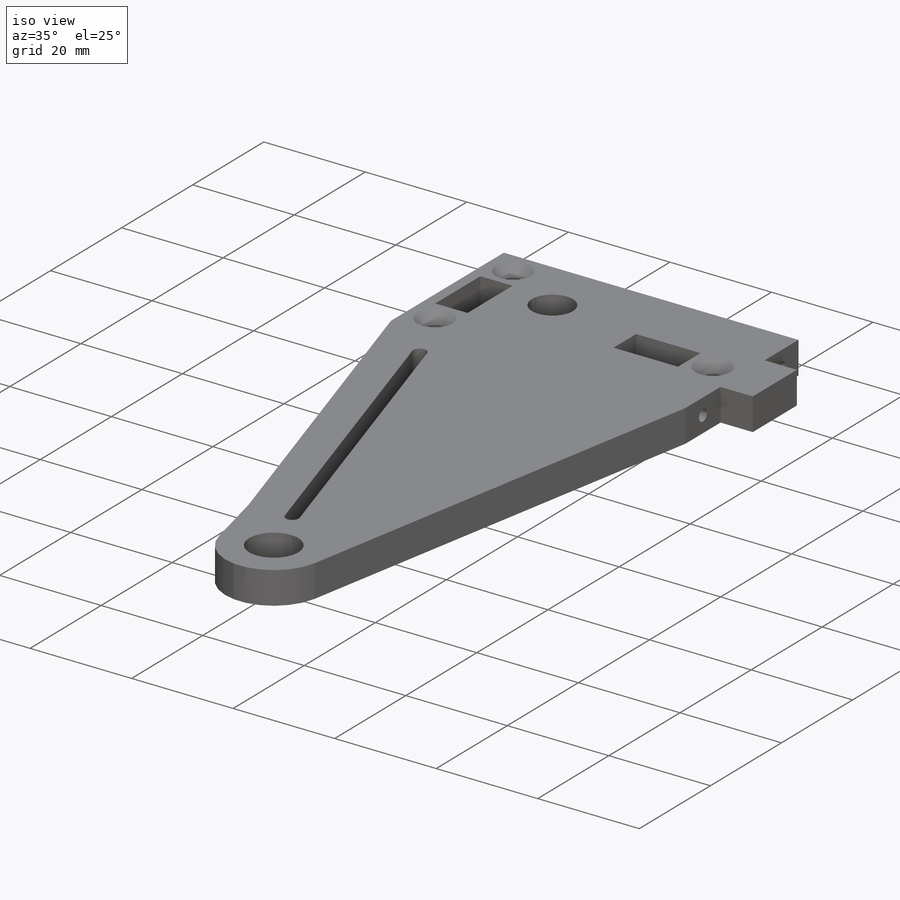
[diagram: iso view]
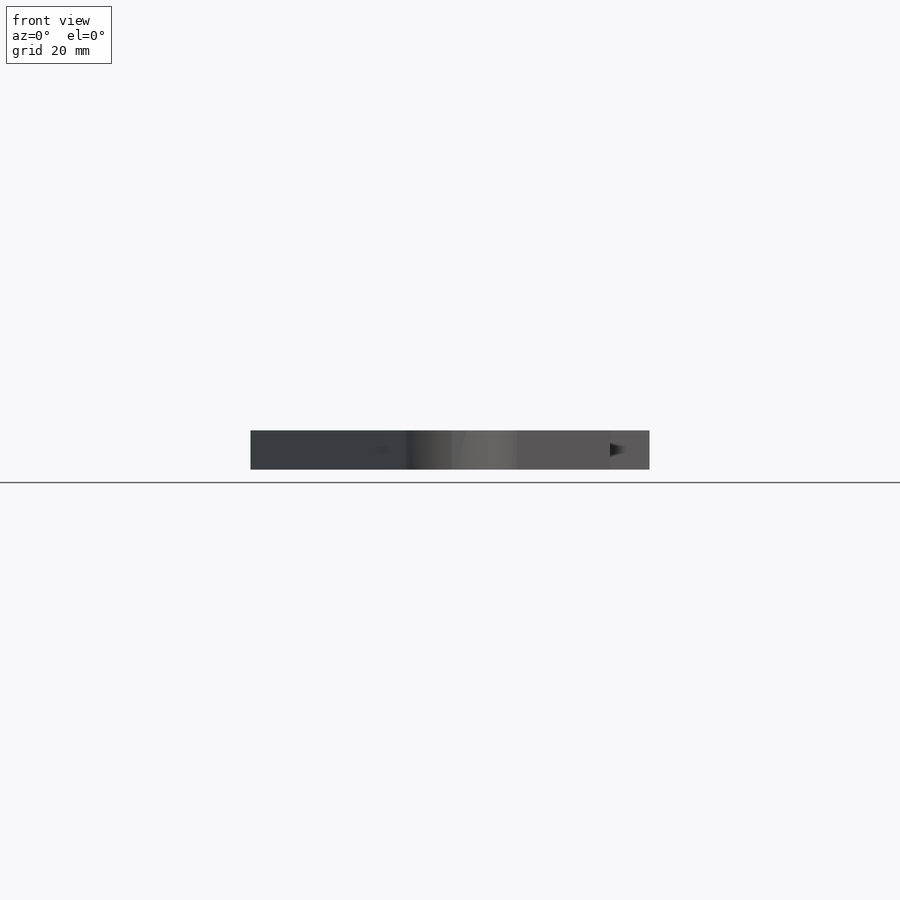
[diagram: front view]
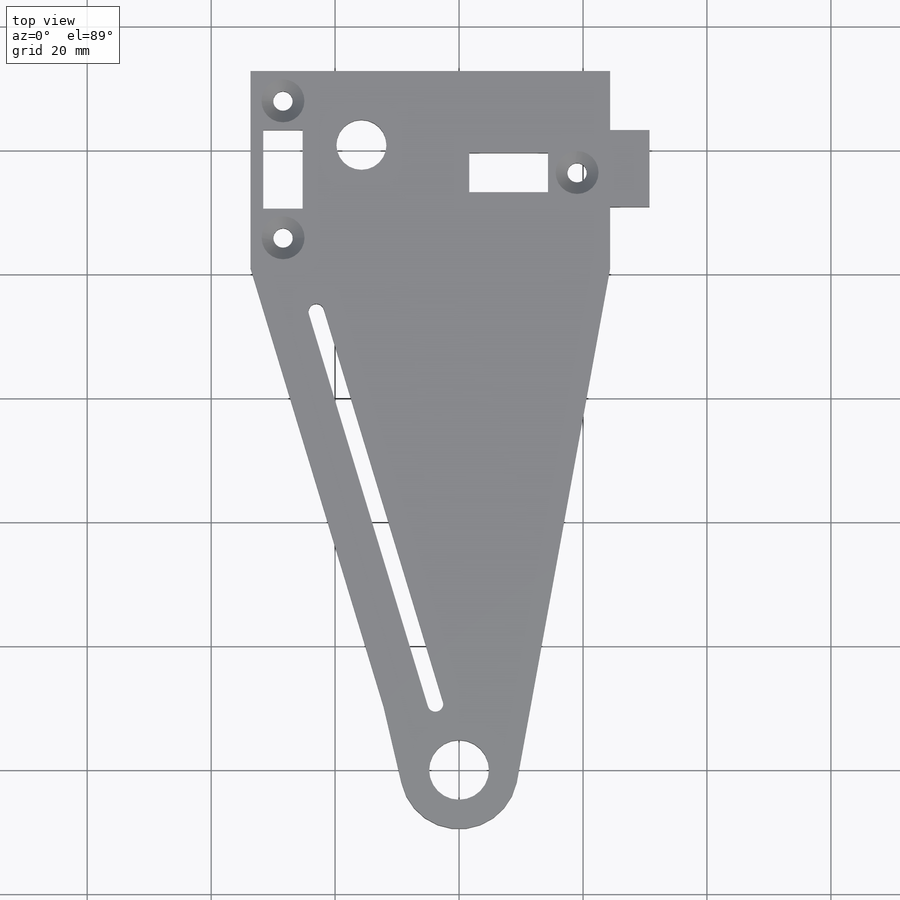
[diagram: top view]
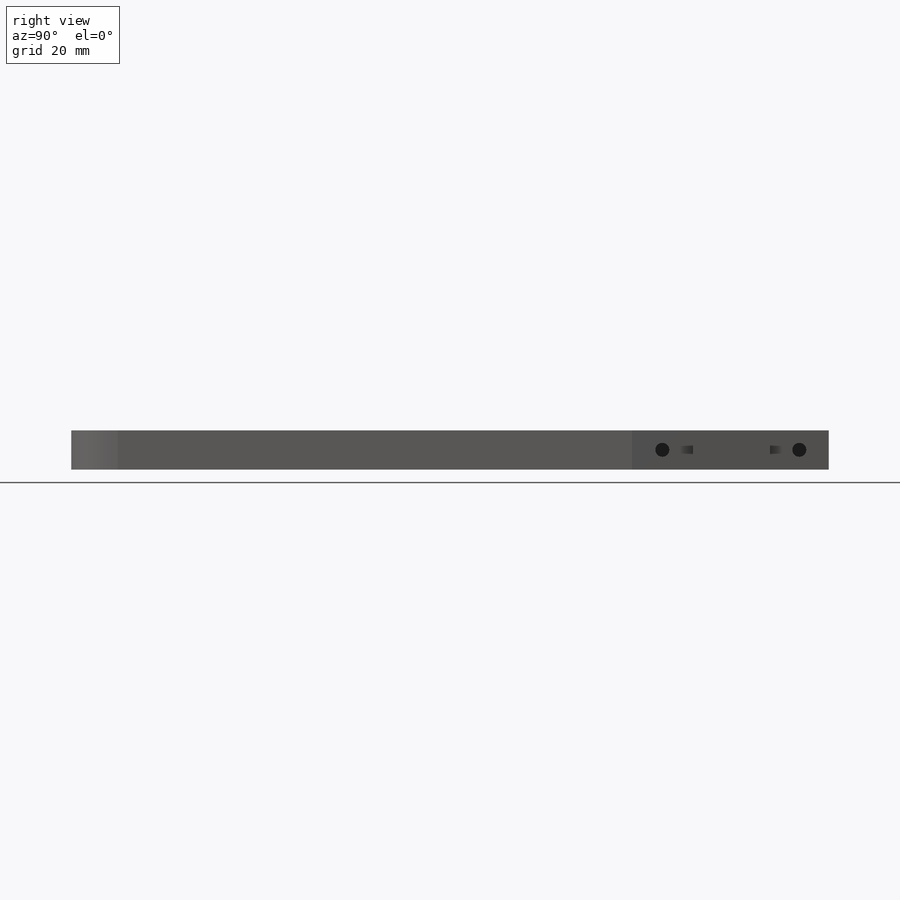
[diagram: right view]
SOLIDWORKS PART (.sldprt)
format: sldprt  version: not decoded by parser v0  size: 217,088 bytes
history: native  units: mm
features: sketch x2, material x1, extrude x1, cut_extrude x1, chamfer x1 (+11 scaffold rows collapsed)
feature tree (17):
  scaffold x11  (default folders/planes/origin — collapsed)
  material  "Material <not specified>"
  sketch  "Sketch1"  dims[c1.D1=154.94mm c1.D2=9.652mm c1.D3=19.05mm c1.D14=3.1242mm c1.D15=8.0772mm c1.D7=3.1242mm c1.D4=112.776mm c1.D5=60.96mm c1.D6=29.845mm c2.D7=31.75mm c2.D6=12.3952mm c2.D8=9.525mm c2.D9=6.35mm c2.D10=3.048mm c2.D11=12.7mm c2.D12=3.2385mm c2.D13=6.35mm c2.D16=15.748mm c2.D17=11.9126mm c2.D18=12.7mm c2.D19=6.096mm c2.D5=6.35mm c3.D10=12.7mm c3.D11=13.208mm c3.D12=5.5372mm c3.D7=2.54mm]
  extrude  "Boss-Extrude1"  Depth=6.35mm
  sketch  "Sketch2"  dims[D1=2.2606mm]
  cut_extrude  "Cut-Extrude1"  Depth=12.7mm
  chamfer  "Chamfer1"  Distance=1.905mm Angle=45deg
decode coverage: 5 of 5 modeling features carry decoded parameters
note: suppression state not decoded; provenance and decode notes live in map.json
